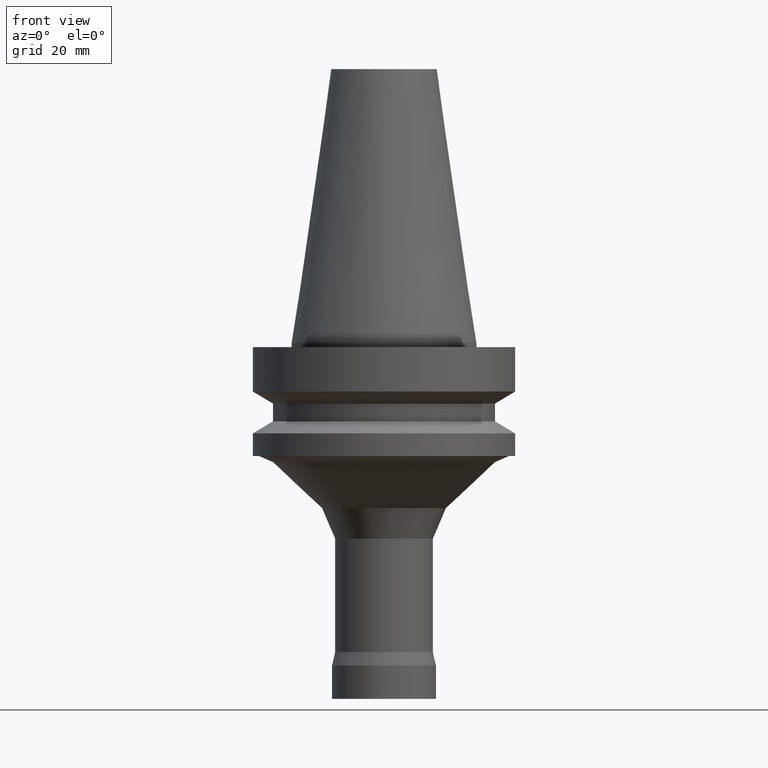
[diagram: clean part render]
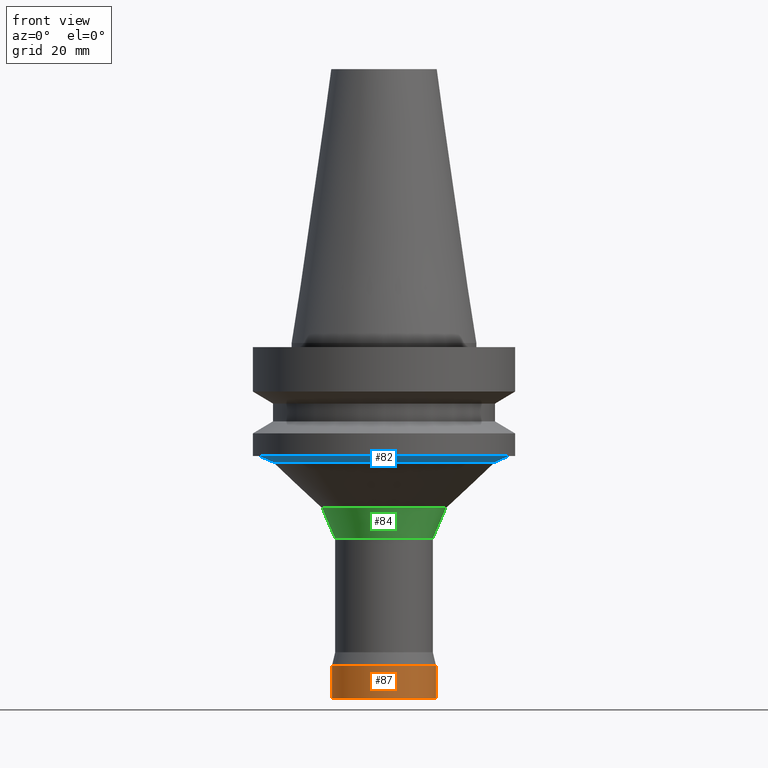
[diagram: same view with three faces highlighted in distinct colors, each labeled with its STEP entity id]
A machine part, front view with three faces highlighted in distinct colors.
Their STEP definitions:

[orange] entity #87 — the highlighted cylindrical surface (bore or boss wall) has radius 12.5 mm, axis along (-0, -0, 1).
#87=ADVANCED_FACE('',(#129,#130),#131,.T.);
#129=FACE_BOUND('',#178,.T.);
#130=FACE_BOUND('',#179,.T.);
#131=CYLINDRICAL_SURFACE('',#180,12.5);
#178=EDGE_LOOP('',(#251));
#179=EDGE_LOOP('',(#252));
#180=AXIS2_PLACEMENT_3D('',#253,#254,#255);
#251=ORIENTED_EDGE('',*,*,#287,.F.);
#252=ORIENTED_EDGE('',*,*,#286,.T.);
#253=CARTESIAN_POINT('',(4.95981953654678E-015,9.91963907309356E-015,-81.0));
#254=DIRECTION('',(-6.12323399573677E-017,-1.22464679914735E-016,1.0));
#255=DIRECTION('',(-1.23259516440783E-032,1.0,1.22464679914735E-016));
#286=EDGE_CURVE('',#314,#314,#315,.T.);
#287=EDGE_CURVE('',#316,#316,#317,.T.);
#314=VERTEX_POINT('',#346);
#315=CIRCLE('',#347,12.5);
#316=VERTEX_POINT('',#348);
#317=CIRCLE('',#349,12.5);
#346=CARTESIAN_POINT('',(4.71489017671731E-015,12.5,-77.0));
#347=AXIS2_PLACEMENT_3D('',#390,#391,#392);
#348=CARTESIAN_POINT('',(5.20474889637625E-015,12.5,-85.0));
#349=AXIS2_PLACEMENT_3D('',#393,#394,#395);
#390=CARTESIAN_POINT('',(4.71489017671731E-015,9.42978035343462E-015,-77.0));
#391=DIRECTION('',(6.12323399573677E-017,1.22464679914735E-016,-1.0));
#392=DIRECTION('',(-1.23259516440783E-032,1.0,1.22464679914735E-016));
#393=CARTESIAN_POINT('',(5.20474889637625E-015,1.04094977927525E-014,-85.0));
#394=DIRECTION('',(6.12323399573677E-017,1.22464679914735E-016,-1.0));
#395=DIRECTION('',(-1.23259516440783E-032,1.0,1.22464679914735E-016));

[blue] entity #82 — the highlighted conical surface has half-angle 67.558 deg.
#82=ADVANCED_FACE('',(#114,#115),#116,.T.);
#114=FACE_BOUND('',#163,.T.);
#115=FACE_BOUND('',#164,.T.);
#116=CONICAL_SURFACE('',#165,28.23585492,1.17910992685392);
#163=EDGE_LOOP('',(#226));
#164=EDGE_LOOP('',(#227));
#165=AXIS2_PLACEMENT_3D('',#228,#229,#230);
#226=ORIENTED_EDGE('',*,*,#282,.F.);
#227=ORIENTED_EDGE('',*,*,#281,.T.);
#228=CARTESIAN_POINT('',(1.69789050942877E-015,3.39578101885753E-015,-27.728656305));
#229=DIRECTION('',(-6.12323399573677E-017,-1.22464679914735E-016,1.0));
#230=DIRECTION('',(-1.23259516440783E-032,1.0,1.22464679914735E-016));
#281=EDGE_CURVE('',#304,#304,#305,.T.);
#282=EDGE_CURVE('',#306,#306,#307,.T.);
#304=VERTEX_POINT('',#336);
#305=CIRCLE('',#337,30.00003788);
#306=VERTEX_POINT('',#338);
#307=CIRCLE('',#339,26.47167196);
#336=CARTESIAN_POINT('',(1.65327317884893E-015,30.00003788,-27.0));
#337=AXIS2_PLACEMENT_3D('',#375,#376,#377);
#338=CARTESIAN_POINT('',(1.74250784000861E-015,26.47167196,-28.45731261));
#339=AXIS2_PLACEMENT_3D('',#378,#379,#380);
#375=CARTESIAN_POINT('',(1.65327317884893E-015,3.30654635769785E-015,-27.0));
#376=DIRECTION('',(6.12323399573677E-017,1.22464679914735E-016,-1.0));
#377=DIRECTION('',(-1.23259516440783E-032,1.0,1.22464679914735E-016));
#378=CARTESIAN_POINT('',(1.74250784000861E-015,3.48501568001721E-015,-28.45731261));
#379=DIRECTION('',(6.12323399573677E-017,1.22464679914735E-016,-1.0));
#380=DIRECTION('',(-1.23259516440783E-032,1.0,1.22464679914735E-016));

[green] entity #84 — the highlighted conical surface has half-angle 23.276 deg.
#84=ADVANCED_FACE('',(#120,#121),#122,.T.);
#120=FACE_BOUND('',#169,.T.);
#121=FACE_BOUND('',#170,.T.);
#122=CONICAL_SURFACE('',#171,13.31156941,0.406244399457422);
#169=EDGE_LOOP('',(#236));
#170=EDGE_LOOP('',(#237));
#171=AXIS2_PLACEMENT_3D('',#238,#239,#240);
#236=ORIENTED_EDGE('',*,*,#284,.F.);
#237=ORIENTED_EDGE('',*,*,#283,.T.);
#238=CARTESIAN_POINT('',(2.63738277380477E-015,5.27476554760954E-015,-43.071729345));
#239=DIRECTION('',(-6.12323399573677E-017,-1.22464679914735E-016,1.0));
#240=DIRECTION('',(-1.23259516440783E-032,1.0,1.22464679914735E-016));
#283=EDGE_CURVE('',#308,#308,#309,.T.);
#284=EDGE_CURVE('',#310,#310,#311,.T.);
#308=VERTEX_POINT('',#340);
#309=CIRCLE('',#341,14.87310094);
#310=VERTEX_POINT('',#342);
#311=CIRCLE('',#343,11.75003788);
#340=CARTESIAN_POINT('',(2.41510908798742E-015,14.87310094,-39.44172458));
#341=AXIS2_PLACEMENT_3D('',#381,#382,#383);
#342=CARTESIAN_POINT('',(2.85965645962211E-015,11.75003788,-46.70173411));
#343=AXIS2_PLACEMENT_3D('',#384,#385,#386);
#381=CARTESIAN_POINT('',(2.41510908798742E-015,4.83021817597485E-015,-39.44172458));
#382=DIRECTION('',(6.12323399573677E-017,1.22464679914735E-016,-1.0));
#383=DIRECTION('',(-1.23259516440783E-032,1.0,1.22464679914735E-016));
#384=CARTESIAN_POINT('',(2.85965645962211E-015,5.71931291924422E-015,-46.70173411));
#385=DIRECTION('',(6.12323399573677E-017,1.22464679914735E-016,-1.0));
#386=DIRECTION('',(-1.23259516440783E-032,1.0,1.22464679914735E-016));